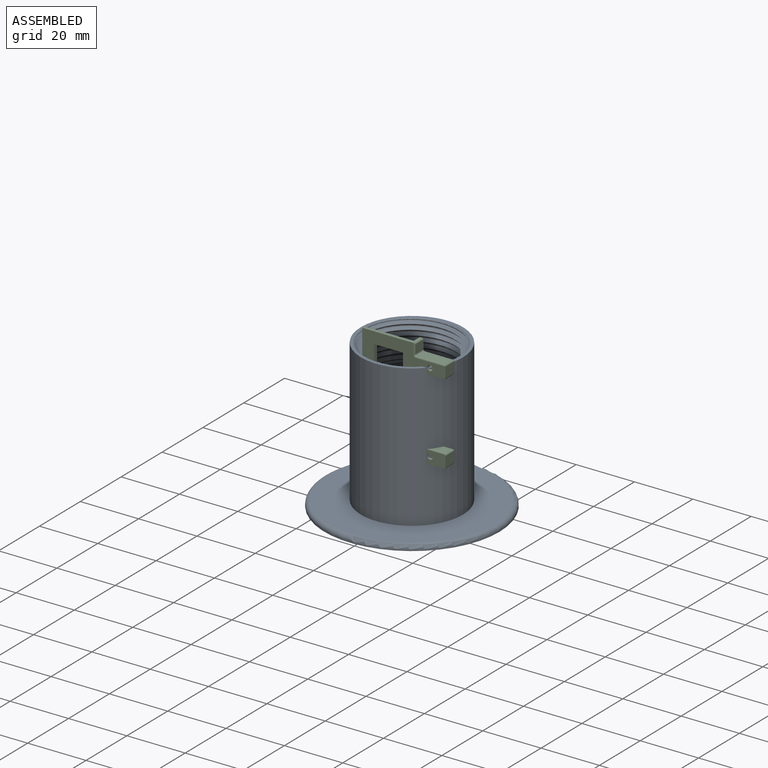
[diagram: assembled view]
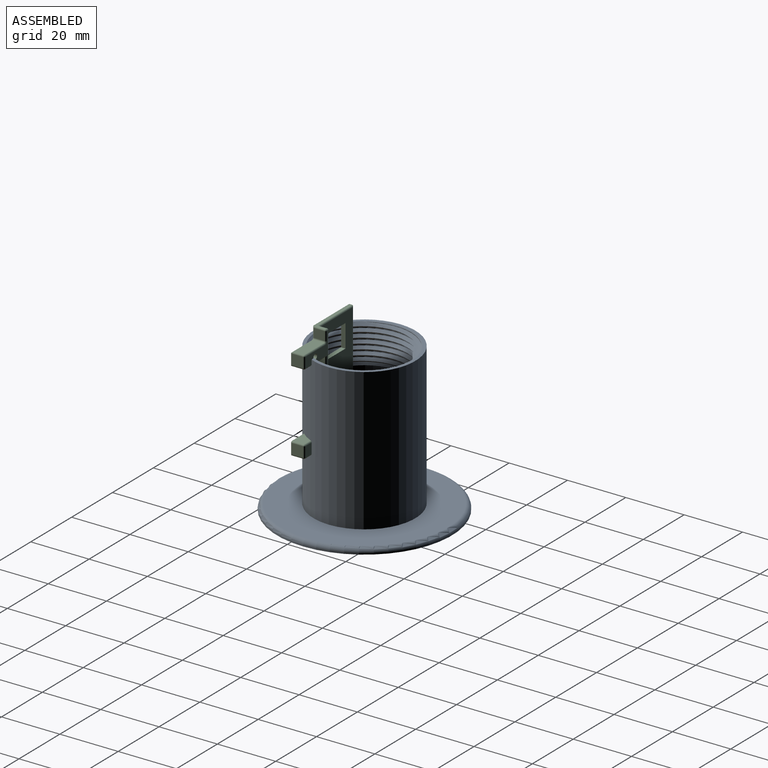
[diagram: assembled view, second angle]
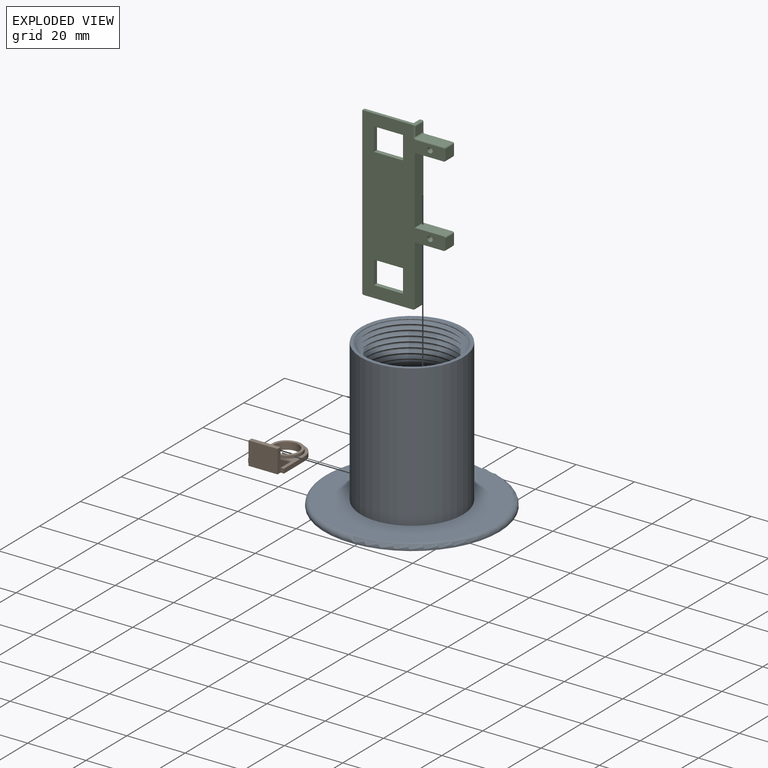
[diagram: exploded view]
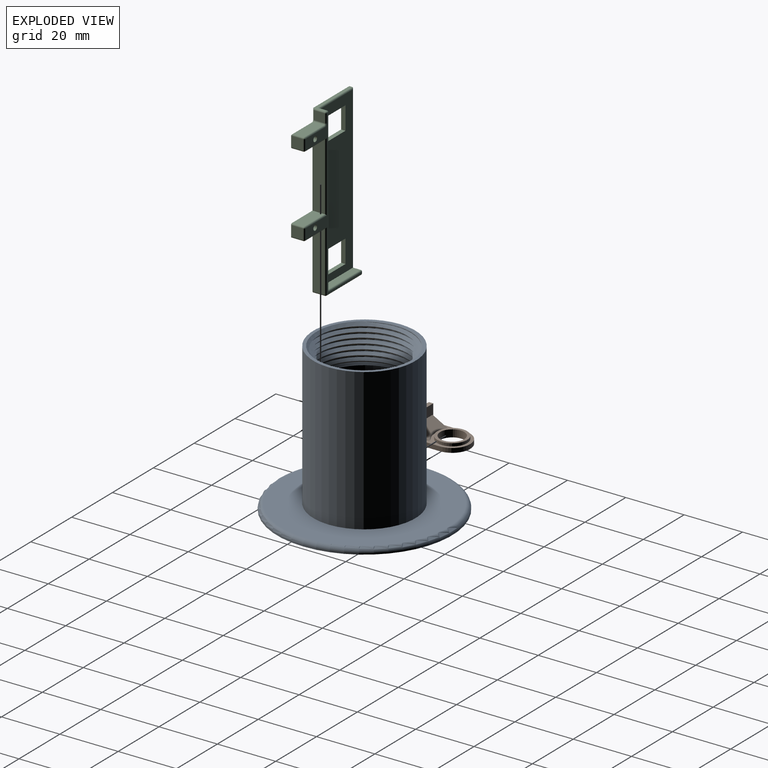
[diagram: exploded view, second angle]
ASSEMBLY  parts=3 mates=4
PART A: 15 faces, bbox 65.2x65.2x51.6 mm
  f0: cone r=15mm half-angle=45deg, axis (0,0,1), area 87.8mm2, adj f6,f9,f12,f13
  f1: plane 30x30mm, normal (0,0,1), area 216mm2, adj f2,f7
  f2: cylinder r=12.5mm len=25mm, axis (0,0,-1), area 157.1mm2, adj f1,f5
  f3: cylinder r=30mm len=60mm, axis (0,0,-1), area 94.2mm2, adj f5,f14
  f4: plane 57x57mm, normal (0,0,1), area 1589.6mm2, adj f8,f14
  f5: plane 60x60mm, normal (0,0,-1), area 2336.6mm2, adj f2,f3
  f6: plane 35x35mm, normal (0,0,1), area 117.1mm2, adj f0,f8
  f7: cylinder r=15mm len=35.75mm, axis (0,0,-1), area 3369.4mm2, adj f1,f10
  f8: cylinder r=17.5mm len=48.75mm, axis (0,0,-1), area 5360.3mm2, adj f4,f6
  f9: cylinder r=16.2mm len=32.4mm, axis (0,0,1), area 210.4mm2, adj f0,f11,f12,f13
  f10: plane 31.44x31.25mm, normal (0,0,1), area 51.2mm2, adj f7,f11,f12,f13
  f11: cone r=15.6mm half-angle=45deg, axis (0,0,1), area 35.2mm2, adj f9,f10,f12,f13
  f12: bspline ~37.41x32.4mm, area 834.9mm2, adj f0,f9,f10,f11,f13
  f13: bspline ~37.41x32.4mm, area 827.7mm2, adj f0,f9,f10,f11,f12
  f14: torus R=28.5mm, axis (0,0,1), area 436.1mm2, adj f3,f4
PART B: 20 faces, bbox 7.9x12.3x17.7 mm
  f0: plane 16.15x12.3mm, normal (-1,0,0), area 54.9mm2, adj f1,f9,f10,f11,f12,f13,f14,f15
  f1: cylinder r=5.1mm len=10.2mm, axis (1,0,0), area 32mm2, adj f0,f2
  f2: plane 10.2x10.2mm, normal (-1,0,0), area 27.6mm2, adj f1,f3
  f3: cylinder r=4.15mm len=8.3mm, axis (1,0,0), area 65.2mm2, adj f2,f4
  f4: plane 17.65x12.3mm, normal (1,0,0), area 143.2mm2, adj f3,f5,f9,f10,f11,f12,f13,f14
  f5: plane 9.95x7.9mm, normal (0,0,-1), area 78.6mm2, adj f4,f6,f14,f19
  f6: plane 9.95x1.5mm, normal (-1,0,0), area 14.9mm2, adj f5,f7,f14,f19
  f7: plane 9.95x3.97mm, normal (0,0,1), area 34mm2, adj f6,f8,f14,f15,f18,f19
  f8: plane 8.95x5.46mm, normal (-0.88,0,0.48), area 43.3mm2, adj f7,f15,f17,f18
  f9: plane 1.5x1.18mm, normal (0,0,-1), area 1.8mm2, adj f0,f4,f10,f19
  f10: plane 10x1.5mm, normal (0,1,0), area 15mm2, adj f0,f4,f9,f11
  f11: cylinder r=6.15mm len=12.3mm, axis (1,0,0), area 29mm2, adj f0,f4,f10,f12
  f12: plane 10x1.5mm, normal (0,-1,0), area 15mm2, adj f0,f4,f11,f13
  f13: plane 1.5x1.18mm, normal (0,0,-1), area 1.8mm2, adj f0,f4,f12,f14
  f14: plane 7.9x5.96mm, normal (0,-1,0), area 17.3mm2, adj f0,f4,f5,f6,f7,f13,f15
  f15: cylinder r=0.5mm len=5.74mm, axis (0.48,0,0.88), area 4.6mm2, adj f0,f7,f8,f14,f17
  f16: cylinder r=6.05mm len=6.44mm, axis (1,0,0), area 0mm2, adj f0,f17
  f17: bspline ~9.02x1.94mm, area 4.9mm2, adj f0,f8,f15,f16,f18
  f18: cylinder r=0.5mm len=5.74mm, axis (-0.48,0,-0.88), area 4.6mm2, adj f0,f7,f8,f17,f19
  f19: plane 7.9x5.96mm, normal (0,1,0), area 17.3mm2, adj f0,f4,f5,f6,f7,f9,f18
PART C: 66 faces, bbox 57.2x28.5x4.6 mm
  f0: plane 17.5x4.1mm, normal (-1,0,0), area 19mm2, adj f9,f21,f42,f45,f50,f56
  f1: plane 9.95x1.5mm, normal (1,0,0), area 14.9mm2, adj f2,f7,f21,f24
  f2: plane 7.9x1.5mm, normal (0,-1,0), area 11.8mm2, adj f1,f3,f21,f24
  f3: plane 9.95x1.5mm, normal (-1,0,0), area 14.9mm2, adj f2,f7,f21,f24
  f4: plane 9.95x1.5mm, normal (1,0,0), area 14.9mm2, adj f5,f8,f21,f24
  f5: plane 7.9x1.5mm, normal (0,-1,0), area 11.9mm2, adj f4,f6,f21,f24
  f6: plane 9.95x1.5mm, normal (-1,0,0), area 14.9mm2, adj f5,f8,f21,f24
  f7: plane 7.9x1.5mm, normal (0,1,0), area 11.8mm2, adj f1,f3,f21,f24
  f8: plane 7.9x1.5mm, normal (0,1,0), area 11.9mm2, adj f4,f6,f21,f24
  f9: plane 56.7x4.1mm, normal (0,1,0), area 58.2mm2, adj f0,f21,f29,f35,f36,f38
  f10: plane 3.6x3mm, normal (0,-1,0), area 10.8mm2, adj f54,f56,f60,f61
  f11: plane 9.5x3.6mm, normal (-1,0,0), area 34.2mm2, adj f58,f61,f64,f65
  f12: plane 4.1x3.5mm, normal (0,-1,0), area 14.4mm2, adj f21,f52,f59,f64
  f13: plane 10x4.1mm, normal (1,0,0), area 41mm2, adj f14,f21,f51,f52
  f14: plane 23.2x4.1mm, normal (0,-1,0), area 95.1mm2, adj f13,f15,f21,f49
  f15: plane 10x4.1mm, normal (-1,0,0), area 41mm2, adj f14,f21,f41,f47
  f16: plane 4.1x3.5mm, normal (0,-1,0), area 14.3mm2, adj f21,f34,f40,f41
  f17: plane 10x4.1mm, normal (1,0,0), area 41mm2, adj f18,f21,f33,f34
  f18: plane 20.5x4.1mm, normal (0,-1,0), area 84.1mm2, adj f17,f21,f27,f31
  f19: plane 17x4.1mm, normal (1,0,0), area 69.7mm2, adj f21,f27,f29,f30
  f20: plane 56.2x27.5mm, normal (0,0,1), area 105mm2, adj f25,f26,f30,f31,f33,f36,f40,f43
  f21: plane 57.2x28.5mm, normal (0,0,-1), area 954.2mm2, adj f0,f1,f2,f3,f4,f5,f6,f7
  f22: plane 55.2x2.6mm, normal (0,1,0), area 143.5mm2, adj f23,f24,f45,f46
  f23: plane 16x2.6mm, normal (-1,0,0), area 41.6mm2, adj f22,f24,f35,f43
  f24: plane 55.2x16mm, normal (0,0,1), area 726mm2, adj f1,f2,f3,f4,f5,f6,f7,f8
  f25: cylinder r=0.9mm len=4.6mm, axis (0,0,1), area 26mm2, adj f20,f21
  f26: cylinder r=0.9mm len=4.6mm, axis (0,0,1), area 26mm2, adj f20,f21
  f27: cylinder r=0.5mm len=4.1mm, axis (0,0,-1), area 3.2mm2, adj f18,f19,f21,f28
  f28: sphere r=0.5mm, area 0.4mm2, adj f27,f30,f31
  f29: cylinder r=0.5mm len=4.1mm, axis (0,0,-1), area 3.2mm2, adj f9,f19,f21,f32
  f30: cylinder r=0.5mm len=17mm, axis (0,-1,0), area 13.4mm2, adj f19,f20,f28,f32
  f31: cylinder r=0.5mm len=21mm, axis (-1,0,0), area 16.2mm2, adj f18,f20,f28,f33
  f32: sphere r=0.5mm, area 0.4mm2, adj f29,f30,f36
  f33: cylinder r=0.5mm len=10.5mm, axis (0,-1,0), area 8mm2, adj f17,f20,f31,f37
  f34: cylinder r=0.5mm len=4.1mm, axis (0,0,-1), area 3.2mm2, adj f16,f17,f21,f37
  f35: cylinder r=0.5mm len=3.1mm, axis (0,0,-1), area 2.2mm2, adj f9,f23,f38,f39
  f36: cylinder r=0.5mm len=0.5mm, axis (1,0,0), area 0.4mm2, adj f9,f20,f32,f39
  f37: sphere r=0.5mm, area 0.4mm2, adj f33,f34,f40
  f38: cylinder r=0.5mm len=56.2mm, axis (1,0,0), area 43.7mm2, adj f9,f24,f35,f42
  f39: sphere r=0.5mm, area 0.4mm2, adj f35,f36,f43
  f40: cylinder r=0.5mm len=3.5mm, axis (-1,0,0), area 2.7mm2, adj f16,f20,f37,f44
  f41: cylinder r=0.5mm len=4.1mm, axis (0,0,-1), area 3.2mm2, adj f15,f16,f21,f44
  f42: cylinder r=0.5mm len=17mm, axis (0,1,0), area 13mm2, adj f0,f24,f38,f45
  f43: cylinder r=0.5mm len=16.5mm, axis (0,-1,0), area 12.7mm2, adj f20,f23,f39,f46
  f44: sphere r=0.5mm, area 0.4mm2, adj f40,f41,f47
  f45: cylinder r=0.5mm len=3.1mm, axis (0,0,1), area 2.2mm2, adj f0,f22,f42,f48
  f46: cylinder r=0.5mm len=55.7mm, axis (-1,0,0), area 43.5mm2, adj f20,f22,f43,f48
  f47: cylinder r=0.5mm len=10.5mm, axis (0,1,0), area 8mm2, adj f15,f20,f44,f49
  f48: sphere r=0.5mm, area 0.4mm2, adj f45,f46,f50
  f49: cylinder r=0.5mm len=24.2mm, axis (-1,0,0), area 18.5mm2, adj f14,f20,f47,f51
  f50: cylinder r=0.5mm len=0.5mm, axis (0,1,0), area 0.4mm2, adj f0,f20,f48,f53
  f51: cylinder r=0.5mm len=10.5mm, axis (0,-1,0), area 8mm2, adj f13,f20,f49,f55
  f52: cylinder r=0.5mm len=4.1mm, axis (0,0,-1), area 3.2mm2, adj f12,f13,f21,f55
  f53: sphere r=0.5mm, area 0.4mm2, adj f50,f54,f56
  f54: cylinder r=0.5mm len=3mm, axis (-1,0,0), area 2.4mm2, adj f10,f20,f53,f57
  f55: sphere r=0.5mm, area 0.4mm2, adj f51,f52,f59
  f56: cylinder r=0.5mm len=4.1mm, axis (0,0,-1), area 3.1mm2, adj f0,f10,f53,f60
  f57: torus R=1mm, axis (0,0,1), area 0.8mm2, adj f20,f54,f58,f61
  f58: cylinder r=0.5mm len=9.5mm, axis (0,1,0), area 7.5mm2, adj f11,f20,f57,f62
  f59: cylinder r=0.5mm len=3.5mm, axis (-1,0,0), area 2.7mm2, adj f12,f20,f55,f62
  f60: cylinder r=0.5mm len=3.5mm, axis (1,0,0), area 2.6mm2, adj f10,f21,f56,f63
  f61: cylinder r=0.5mm len=3.6mm, axis (0,0,1), area 2.8mm2, adj f10,f11,f57,f63
  f62: sphere r=0.5mm, area 0.4mm2, adj f58,f59,f64
  f63: torus R=1mm, axis (0,0,1), area 0.8mm2, adj f21,f60,f61,f65
  f64: cylinder r=0.5mm len=4.1mm, axis (0,0,-1), area 3.1mm2, adj f11,f12,f62,f65
  f65: cylinder r=0.5mm len=10mm, axis (0,-1,0), area 7.7mm2, adj f11,f21,f63,f64
PLACE A t=(6.59,-66.94,4.04)mm
PLACE B rot(axis=(-0.58,0.58,0.58),120deg) t=(21.57,-83.04,23.81)mm
PLACE C rot(axis=(-0.58,0.58,0.58),120deg) t=(21.57,-78.44,23.81)mm
MATE planar B.f19 <-> C.f5  axis (-1,0,0) through (1.62,-74.71,10.76)mm
MATE planar C.f4 <-> B.f6  axis (0,0,-1) through (6.59,-77.69,15.94)mm
MATE planar C.f21 <-> B.f5  axis (0,-1,0) through (7.83,-78.44,33.25)mm
MATE planar C.f19 <-> A.f0  axis (0,0,-1) through (6.59,-76.39,4.04)mm
